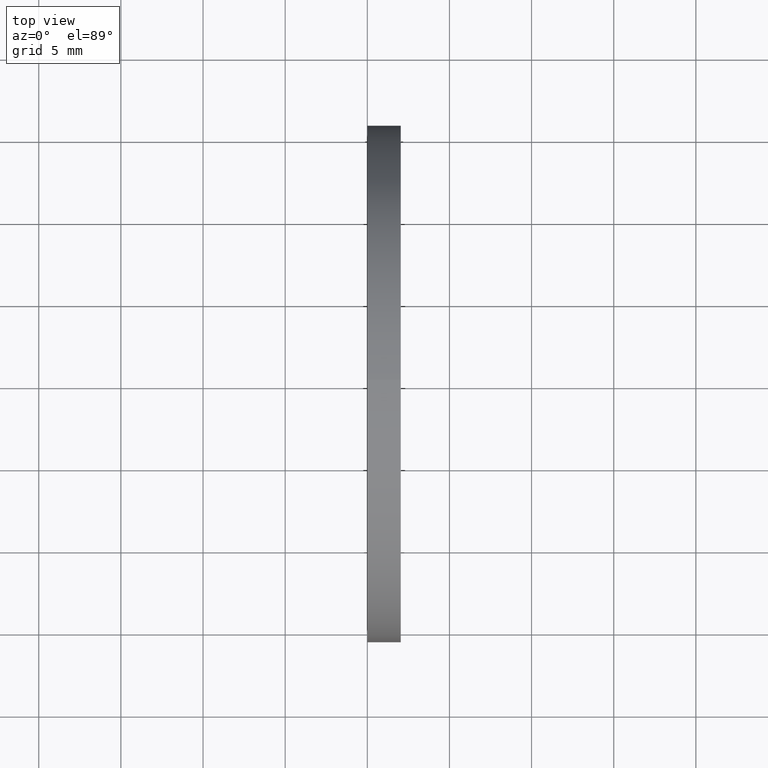
[diagram: clean part render]
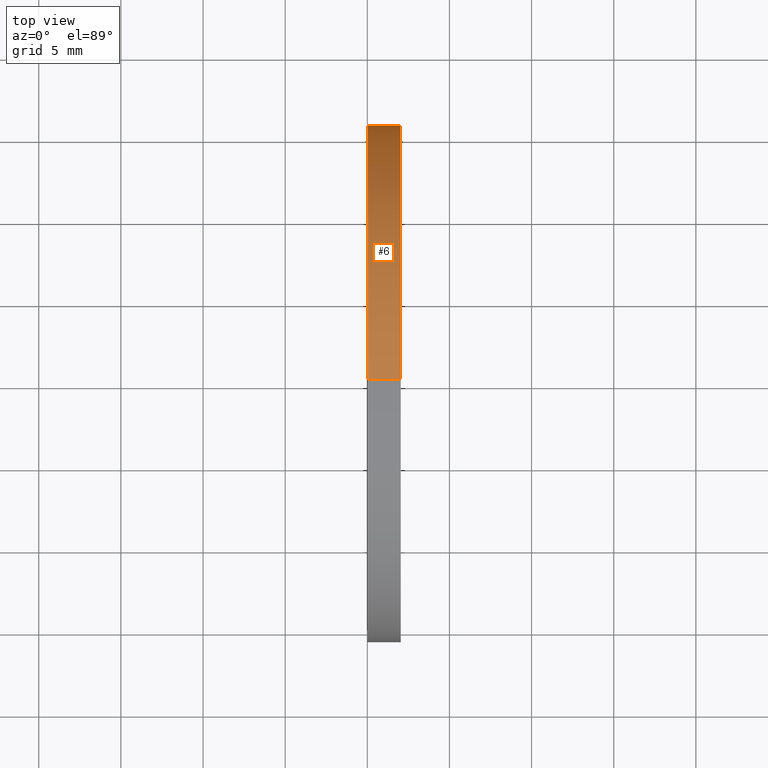
[diagram: same view with one face highlighted and labeled with its STEP entity id]
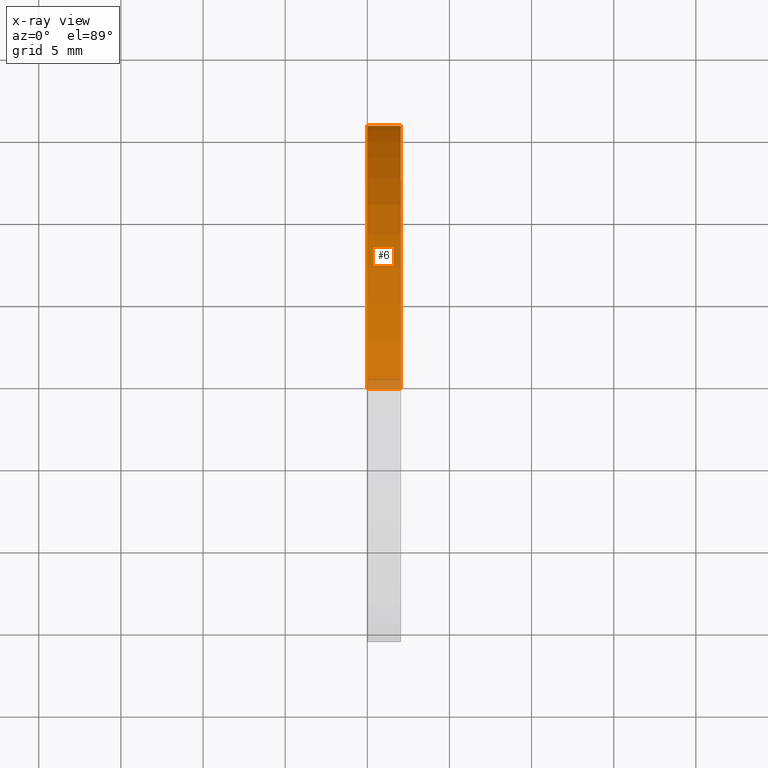
[diagram: x-ray of the same camera — body ghosted, the highlighted face saturated]
A machine part, top view. The second image highlights one B-rep face of the part: STEP entity #6.
The next image is the same camera in x-ray: the body ghosted, the highlighted face saturated — about 3% of this face is hidden behind the body in this view.
In plain terms, the highlighted cylindrical surface (partial cylindrical patch) has radius 15.748 mm, axis along (-1, 0, 0).
Its self-contained STEP definition (entity closure, byte-faithful):
#1 = ORIENTED_EDGE ( 'NONE', *, *, #12, .T. ) ;
#2 = VERTEX_POINT ( 'NONE', #59 ) ;
#3 = EDGE_CURVE ( 'NONE', #4, #2, #68, .T. ) ;
#4 = VERTEX_POINT ( 'NONE', #65 ) ;
#5 = EDGE_LOOP ( 'NONE', ( #7, #1, #14, #18 ) ) ;
#6 = ADVANCED_FACE ( 'NONE', ( #76 ), #69, .T. ) ;
#7 = ORIENTED_EDGE ( 'NONE', *, *, #3, .T. ) ;
#12 = EDGE_CURVE ( 'NONE', #2, #13, #87, .T. ) ;
#13 = VERTEX_POINT ( 'NONE', #94 ) ;
#14 = ORIENTED_EDGE ( 'NONE', *, *, #15, .F. ) ;
#15 = EDGE_CURVE ( 'NONE', #16, #13, #91, .T. ) ;
#16 = VERTEX_POINT ( 'NONE', #88 ) ;
#18 = ORIENTED_EDGE ( 'NONE', *, *, #19, .F. ) ;
#19 = EDGE_CURVE ( 'NONE', #4, #16, #98, .T. ) ;
#58 = DIRECTION ( 'NONE',  ( -1.000000000000000000, 0.0000000000000000000, 0.0000000000000000000 ) ) ;
#59 = CARTESIAN_POINT ( 'NONE',  ( 0.07999999999999996000, 7.592810154713589100E-017, -0.6200000000000000000 ) ) ;
#64 = DIRECTION ( 'NONE',  ( 0.0000000000000000000, 0.0000000000000000000, 1.000000000000000000 ) ) ;
#65 = CARTESIAN_POINT ( 'NONE',  ( 0.07999999999999996000, 0.0000000000000000000, 0.6200000000000000000 ) ) ;
#66 = DIRECTION ( 'NONE',  ( -1.000000000000000000, 0.0000000000000000000, 0.0000000000000000000 ) ) ;
#67 = CARTESIAN_POINT ( 'NONE',  ( -1.721125226614714300, 0.0000000000000000000, 0.0000000000000000000 ) ) ;
#68 = CIRCLE ( 'NONE', #77, 0.6200000000000000000 ) ;
#69 = CYLINDRICAL_SURFACE ( 'NONE', #74, 0.6200000000000000000 ) ;
#72 = DIRECTION ( 'NONE',  ( 0.0000000000000000000, 0.0000000000000000000, 1.000000000000000000 ) ) ;
#73 = DIRECTION ( 'NONE',  ( -1.000000000000000000, 0.0000000000000000000, 0.0000000000000000000 ) ) ;
#74 = AXIS2_PLACEMENT_3D ( 'NONE', #67, #73, #72 ) ;
#75 = CARTESIAN_POINT ( 'NONE',  ( 0.07999999999999996000, 0.0000000000000000000, 0.0000000000000000000 ) ) ;
#76 = FACE_OUTER_BOUND ( 'NONE', #5, .T. ) ;
#77 = AXIS2_PLACEMENT_3D ( 'NONE', #75, #66, #64 ) ;
#85 = VECTOR ( 'NONE', #58, 39.37007874015748100 ) ;
#86 = CARTESIAN_POINT ( 'NONE',  ( -1.721125226614714300, 7.592810154713589100E-017, -0.6200000000000000000 ) ) ;
#87 = LINE ( 'NONE', #86, #85 ) ;
#88 = CARTESIAN_POINT ( 'NONE',  ( 0.0000000000000000000, 0.0000000000000000000, 0.6200000000000000000 ) ) ;
#89 = CARTESIAN_POINT ( 'NONE',  ( 0.0000000000000000000, 0.0000000000000000000, 0.0000000000000000000 ) ) ;
#90 = AXIS2_PLACEMENT_3D ( 'NONE', #89, #93, #92 ) ;
#91 = CIRCLE ( 'NONE', #90, 0.6200000000000000000 ) ;
#92 = DIRECTION ( 'NONE',  ( 0.0000000000000000000, 0.0000000000000000000, 1.000000000000000000 ) ) ;
#93 = DIRECTION ( 'NONE',  ( -1.000000000000000000, 0.0000000000000000000, 0.0000000000000000000 ) ) ;
#94 = CARTESIAN_POINT ( 'NONE',  ( 0.0000000000000000000, 7.592810154713589100E-017, -0.6200000000000000000 ) ) ;
#95 = DIRECTION ( 'NONE',  ( -1.000000000000000000, 0.0000000000000000000, 0.0000000000000000000 ) ) ;
#96 = VECTOR ( 'NONE', #95, 39.37007874015748100 ) ;
#97 = CARTESIAN_POINT ( 'NONE',  ( -1.721125226614714300, 0.0000000000000000000, 0.6200000000000000000 ) ) ;
#98 = LINE ( 'NONE', #97, #96 ) ;